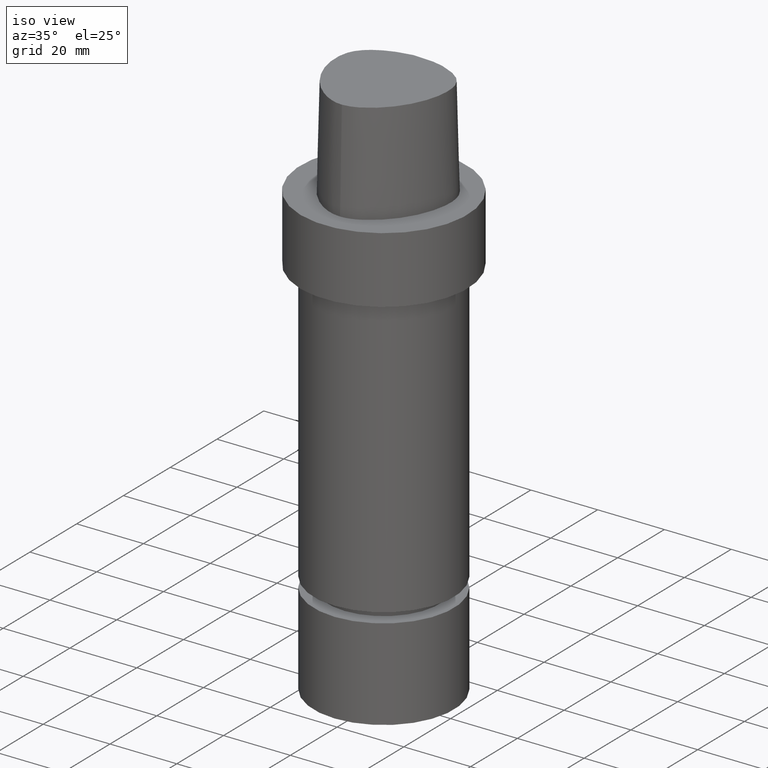
[diagram: clean part render]
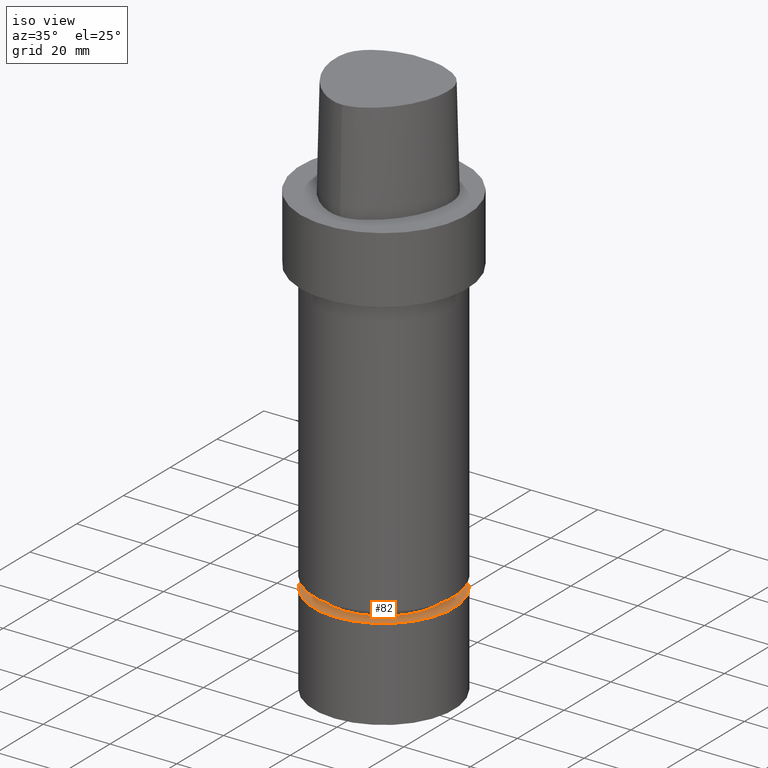
[diagram: same view with one face highlighted and labeled with its STEP entity id]
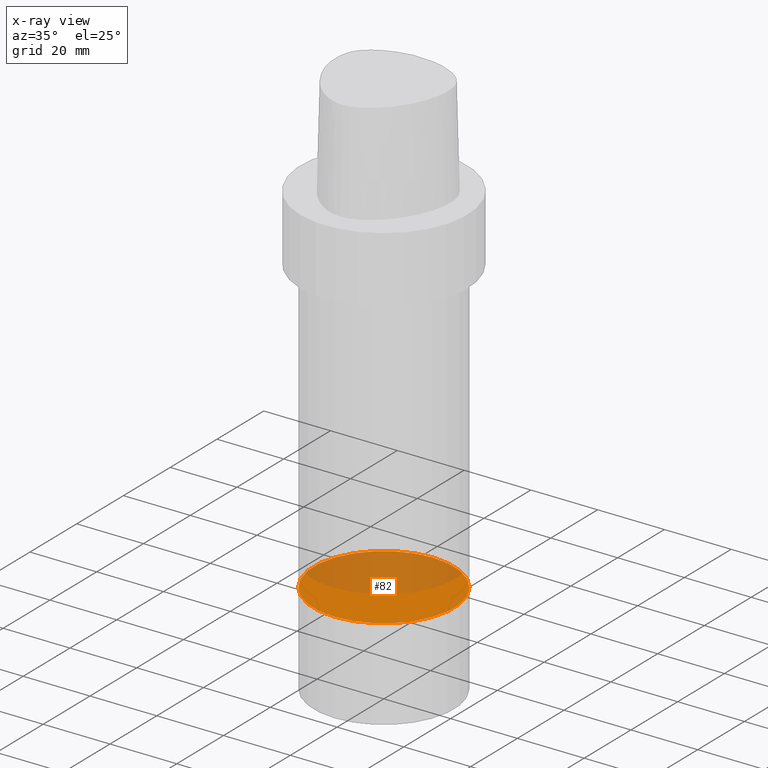
[diagram: x-ray of the same camera — body ghosted, the highlighted face saturated]
A machine part, iso view. The second image highlights one B-rep face of the part: STEP entity #82.
The next image is the same camera in x-ray: the body ghosted, the highlighted face saturated — about 51% of this face is hidden behind the body in this view.
In plain terms, the highlighted planar face has unit normal (-0, -0, 1).
Its self-contained STEP definition (entity closure, byte-faithful):
#82=ADVANCED_FACE('Unnamed[1]',(#192),#193,.T.);
#123=EDGE_CURVE('Unnamed[1]',#253,#253,#254,.T.);
#192=FACE_OUTER_BOUND('',#335,.T.);
#193=PLANE('',#336);
#253=VERTEX_POINT('',#941);
#254=CIRCLE('',#942,21.0);
#335=EDGE_LOOP('',(#1016));
#336=AXIS2_PLACEMENT_3D('',#1017,#1018,#1019);
#941=CARTESIAN_POINT('',(6.58247654541702E-015,21.0,-107.5));
#942=AXIS2_PLACEMENT_3D('',#1074,#1075,#1076);
#1016=ORIENTED_EDGE('',*,*,#123,.F.);
#1017=CARTESIAN_POINT('',(6.58247654541702E-015,10.5,-107.5));
#1018=DIRECTION('',(-6.12323399573677E-017,-1.22464679914735E-016,1.0));
#1019=DIRECTION('',(1.23259516440783E-032,-1.0,-1.22464679914735E-016));
#1074=CARTESIAN_POINT('',(6.58247654541702E-015,1.3164953090834E-014,-107.5));
#1075=DIRECTION('',(6.12323399573677E-017,1.22464679914735E-016,-1.0));
#1076=DIRECTION('',(-1.23259516440783E-032,1.0,1.22464679914735E-016));